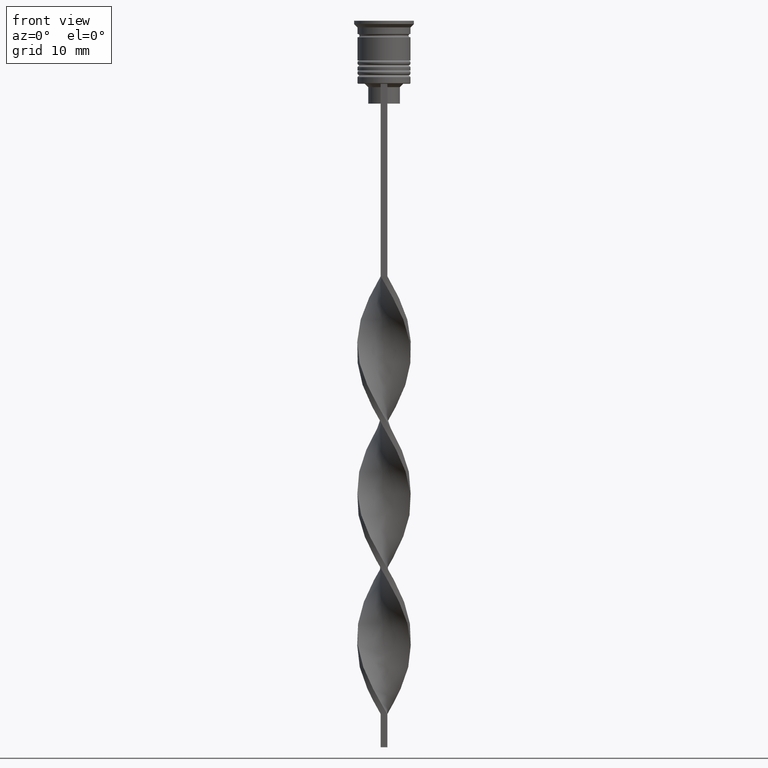
[diagram: clean part render]
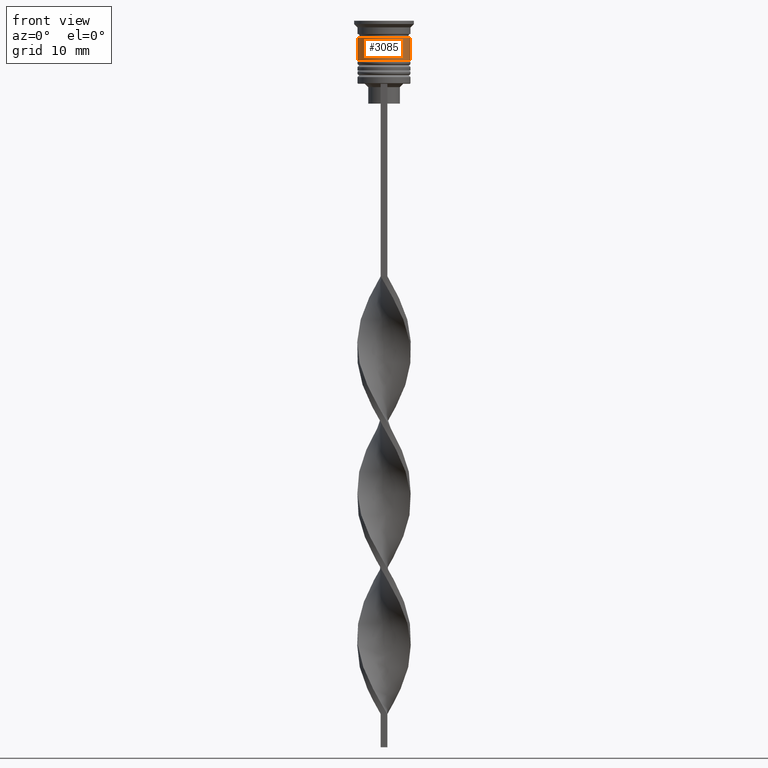
[diagram: same view with one face highlighted and labeled with its STEP entity id]
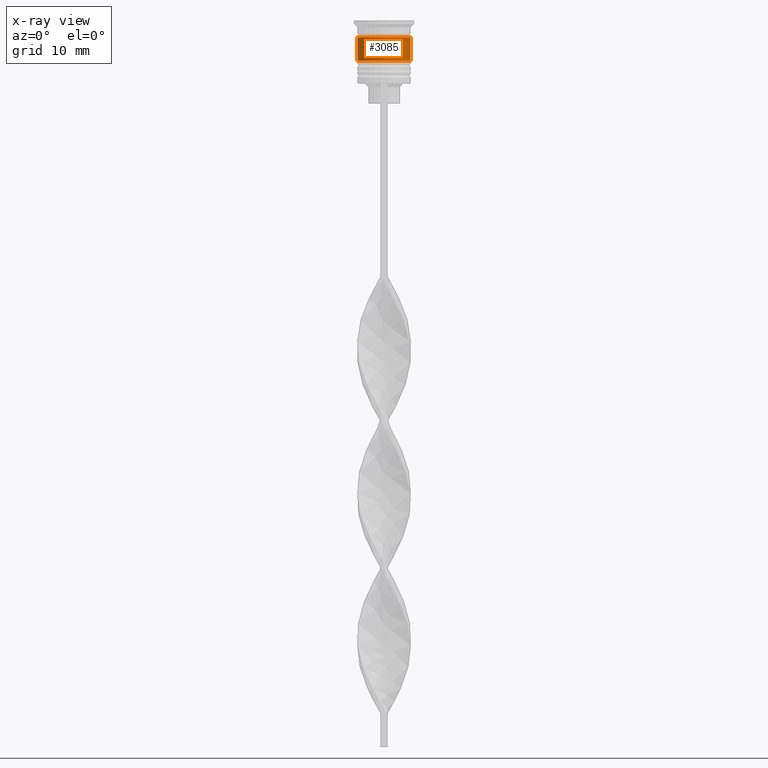
[diagram: x-ray of the same camera — body ghosted, the highlighted face saturated]
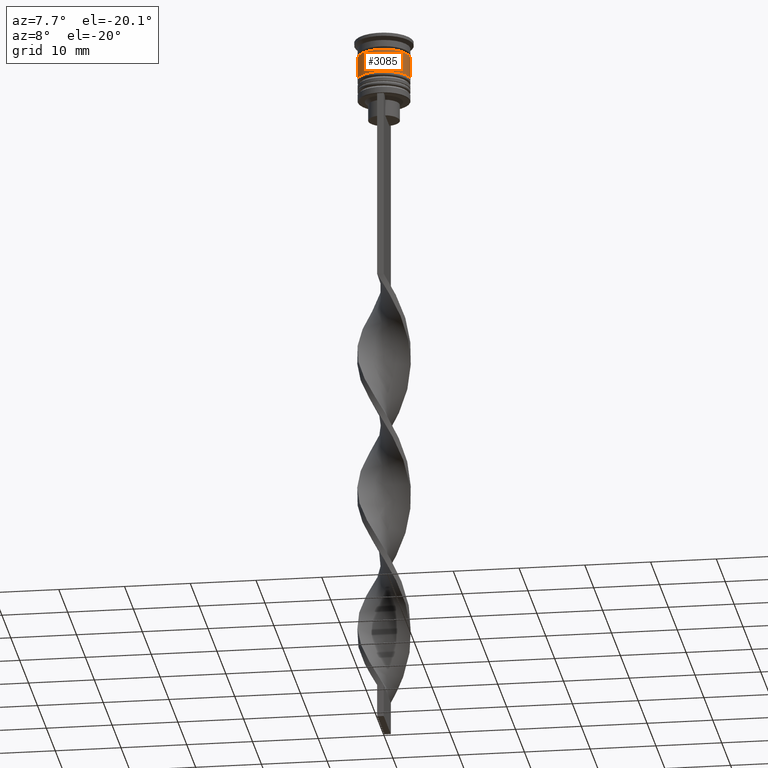
[diagram: same view with one face highlighted and labeled with its STEP entity id]
A machine part, front view. The second image highlights one B-rep face of the part: STEP entity #3085.
The next image is the same camera in x-ray: the body ghosted, the highlighted face saturated — about 0% of this face is hidden behind the body in this view.
A second angle (auxiliary view) of the same face is appended — the face is thin or edge-on in the first view.
In plain terms, the highlighted cylindrical surface (edge-blend (fillet) strip) has radius 4 mm, axis along (-0, -0, 1).
Its self-contained STEP definition (entity closure, byte-faithful):
#33 = EDGE_CURVE ( 'NONE', #2885, #2866, #769, .T. ) ;
#52 = CARTESIAN_POINT ( 'NONE',  ( 0.000000000000000000, 0.000000000000000000, -6.000000000000000000 ) ) ;
#62 = VERTEX_POINT ( 'NONE', #217 ) ;
#130 = EDGE_CURVE ( 'NONE', #62, #2866, #770, .T. ) ;
#217 = CARTESIAN_POINT ( 'NONE',  ( 4.000000000000000888, 0.000000000000000000, -6.000000000000000000 ) ) ;
#318 = DIRECTION ( 'NONE',  ( -0.000000000000000000, -0.000000000000000000, 1.000000000000000000 ) ) ;
#334 = DIRECTION ( 'NONE',  ( -0.000000000000000000, -0.000000000000000000, 1.000000000000000000 ) ) ;
#362 = AXIS2_PLACEMENT_3D ( 'NONE', #52, #318, #2085 ) ;
#552 = VECTOR ( 'NONE', #1577, 1000.000000000000000 ) ;
#769 = CIRCLE ( 'NONE', #2295, 4.000000000000000000 ) ;
#770 = LINE ( 'NONE', #1906, #1839 ) ;
#780 = ORIENTED_EDGE ( 'NONE', *, *, #2814, .F. ) ;
#857 = AXIS2_PLACEMENT_3D ( 'NONE', #2259, #1485, #3410 ) ;
#1082 = ORIENTED_EDGE ( 'NONE', *, *, #2037, .T. ) ;
#1098 = VERTEX_POINT ( 'NONE', #1565 ) ;
#1291 = CARTESIAN_POINT ( 'NONE',  ( -4.000000000000000000, 4.898587196589412829E-16, 0.000000000000000000 ) ) ;
#1323 = DIRECTION ( 'NONE',  ( 1.000000000000000000, 0.000000000000000000, 0.000000000000000000 ) ) ;
#1485 = DIRECTION ( 'NONE',  ( -0.000000000000000000, -0.000000000000000000, 1.000000000000000000 ) ) ;
#1565 = CARTESIAN_POINT ( 'NONE',  ( -4.000000000000000888, 4.898587196589413815E-16, -6.000000000000000000 ) ) ;
#1577 = DIRECTION ( 'NONE',  ( -0.000000000000000000, -0.000000000000000000, 1.000000000000000000 ) ) ;
#1592 = CARTESIAN_POINT ( 'NONE',  ( -4.000000000000000000, 4.898587196589412829E-16, -2.500000000000000000 ) ) ;
#1756 = ORIENTED_EDGE ( 'NONE', *, *, #33, .F. ) ;
#1797 = CIRCLE ( 'NONE', #362, 4.000000000000000888 ) ;
#1839 = VECTOR ( 'NONE', #334, 1000.000000000000000 ) ;
#1874 = CARTESIAN_POINT ( 'NONE',  ( 4.000000000000000000, 0.000000000000000000, -2.500000000000000000 ) ) ;
#1906 = CARTESIAN_POINT ( 'NONE',  ( 4.000000000000000000, 0.000000000000000000, 0.000000000000000000 ) ) ;
#2037 = EDGE_CURVE ( 'NONE', #1098, #62, #1797, .T. ) ;
#2085 = DIRECTION ( 'NONE',  ( 1.000000000000000000, 0.000000000000000000, 0.000000000000000000 ) ) ;
#2259 = CARTESIAN_POINT ( 'NONE',  ( 0.000000000000000000, 0.000000000000000000, 0.000000000000000000 ) ) ;
#2285 = FACE_OUTER_BOUND ( 'NONE', #3504, .T. ) ;
#2295 = AXIS2_PLACEMENT_3D ( 'NONE', #2704, #2468, #1323 ) ;
#2382 = LINE ( 'NONE', #1291, #552 ) ;
#2468 = DIRECTION ( 'NONE',  ( -0.000000000000000000, -0.000000000000000000, 1.000000000000000000 ) ) ;
#2704 = CARTESIAN_POINT ( 'NONE',  ( 0.000000000000000000, 0.000000000000000000, -2.500000000000000000 ) ) ;
#2814 = EDGE_CURVE ( 'NONE', #1098, #2885, #2382, .T. ) ;
#2841 = ORIENTED_EDGE ( 'NONE', *, *, #130, .T. ) ;
#2866 = VERTEX_POINT ( 'NONE', #1874 ) ;
#2885 = VERTEX_POINT ( 'NONE', #1592 ) ;
#3085 = ADVANCED_FACE ( 'NONE', ( #2285 ), #3372, .T. ) ;
#3372 = CYLINDRICAL_SURFACE ( 'NONE', #857, 4.000000000000000000 ) ;
#3410 = DIRECTION ( 'NONE',  ( 1.000000000000000000, 0.000000000000000000, 0.000000000000000000 ) ) ;
#3504 = EDGE_LOOP ( 'NONE', ( #780, #1082, #2841, #1756 ) ) ;